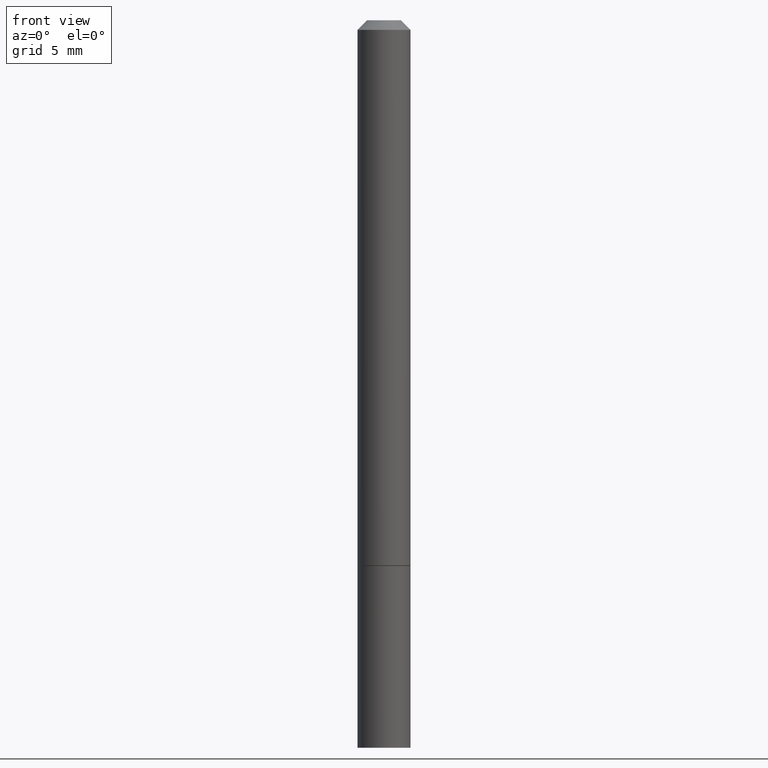
[diagram: clean part render]
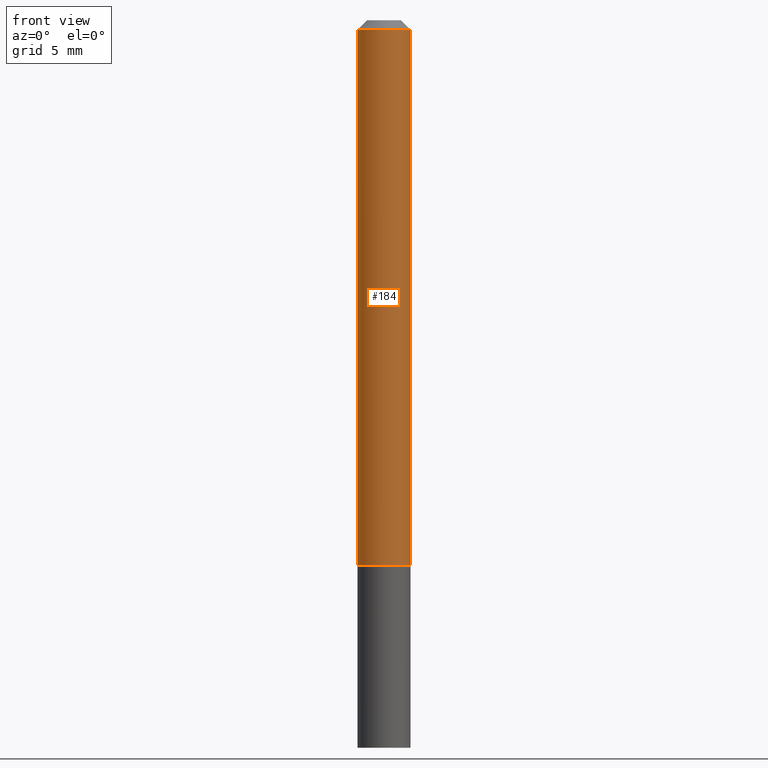
[diagram: same view with one face highlighted and labeled with its STEP entity id]
A machine part, front view. The second image highlights one B-rep face of the part: STEP entity #184.
In plain terms, the highlighted cylindrical surface (edge-blend (fillet) strip) has radius 1.3894 mm, axis along (-0, 0, 1).
Its self-contained STEP definition (entity closure, byte-faithful):
#15 = DIRECTION ( 'NONE',  ( -2.445468806185136597E-29, 3.491481338843145583E-15, 1.000000000000000000 ) ) ;
#27 = AXIS2_PLACEMENT_3D ( 'NONE', #318, #208, #353 ) ;
#41 = ORIENTED_EDGE ( 'NONE', *, *, #149, .F. ) ;
#62 = CARTESIAN_POINT ( 'NONE',  ( 4.890937612370276662E-31, -6.982962677686296539E-17, -0.02000000000000001776 ) ) ;
#78 = CIRCLE ( 'NONE', #27, 0.05469999999999999862 ) ;
#83 = DIRECTION ( 'NONE',  ( 1.000000000000000000, -6.982962677686266711E-15, 0.000000000000000000 ) ) ;
#85 = LINE ( 'NONE', #148, #123 ) ;
#89 = CARTESIAN_POINT ( 'NONE',  ( 0.05469999999999999862, -4.306393083329135397E-15, -1.124000000000000332 ) ) ;
#111 = DIRECTION ( 'NONE',  ( -2.445468806185136597E-29, 3.491481338843145583E-15, 1.000000000000000000 ) ) ;
#114 = EDGE_LOOP ( 'NONE', ( #315, #305, #127, #41 ) ) ;
#115 = DIRECTION ( 'NONE',  ( 1.000000000000000000, -6.982962677686266711E-15, 4.876176775795935793E-29 ) ) ;
#122 = DIRECTION ( 'NONE',  ( -2.445468806185136877E-29, 3.491481338843145188E-15, 1.000000000000000000 ) ) ;
#123 = VECTOR ( 'NONE', #387, 39.37007874015748143 ) ;
#127 = ORIENTED_EDGE ( 'NONE', *, *, #370, .T. ) ;
#134 = VERTEX_POINT ( 'NONE', #89 ) ;
#145 = CIRCLE ( 'NONE', #335, 0.05469999999999985291 ) ;
#148 = CARTESIAN_POINT ( 'NONE',  ( -0.05469999999999992923, 3.886668764607742989E-16, -2.690657494369430205E-30 ) ) ;
#149 = EDGE_CURVE ( 'NONE', #357, #182, #145, .T. ) ;
#151 = CARTESIAN_POINT ( 'NONE',  ( -0.05469999999999985291, 3.121384316925747975E-16, -0.02000000000000001776 ) ) ;
#154 = EDGE_CURVE ( 'NONE', #218, #134, #78, .T. ) ;
#182 = VERTEX_POINT ( 'NONE', #379 ) ;
#183 = CARTESIAN_POINT ( 'NONE',  ( 0.000000000000000000, 0.000000000000000000, 0.000000000000000000 ) ) ;
#184 = ADVANCED_FACE ( 'NONE', ( #264 ), #383, .T. ) ;
#185 = AXIS2_PLACEMENT_3D ( 'NONE', #183, #111, #115 ) ;
#187 = LINE ( 'NONE', #209, #244 ) ;
#208 = DIRECTION ( 'NONE',  ( -2.445468806185136597E-29, 3.491481338843145583E-15, 1.000000000000000000 ) ) ;
#209 = CARTESIAN_POINT ( 'NONE',  ( 0.05469999999999992923, -3.819680584694382929E-16, 2.667268696360373451E-30 ) ) ;
#218 = VERTEX_POINT ( 'NONE', #297 ) ;
#228 = EDGE_CURVE ( 'NONE', #218, #357, #85, .T. ) ;
#244 = VECTOR ( 'NONE', #122, 39.37007874015748143 ) ;
#264 = FACE_OUTER_BOUND ( 'NONE', #114, .T. ) ;
#297 = CARTESIAN_POINT ( 'NONE',  ( -0.05470000000000000556, -1.608460449357502599E-15, -1.124000000000000332 ) ) ;
#305 = ORIENTED_EDGE ( 'NONE', *, *, #154, .T. ) ;
#315 = ORIENTED_EDGE ( 'NONE', *, *, #228, .F. ) ;
#318 = CARTESIAN_POINT ( 'NONE',  ( 2.748706938152094189E-29, -3.924425024859696217E-15, -1.124000000000000332 ) ) ;
#335 = AXIS2_PLACEMENT_3D ( 'NONE', #62, #15, #83 ) ;
#353 = DIRECTION ( 'NONE',  ( 1.000000000000000000, -6.982962677686269866E-15, 0.000000000000000000 ) ) ;
#357 = VERTEX_POINT ( 'NONE', #151 ) ;
#370 = EDGE_CURVE ( 'NONE', #134, #182, #187, .T. ) ;
#379 = CARTESIAN_POINT ( 'NONE',  ( 0.05469999999999985291, -4.450988672549647962E-16, -0.02000000000000001776 ) ) ;
#383 = CYLINDRICAL_SURFACE ( 'NONE', #185, 0.05469999999999992923 ) ;
#387 = DIRECTION ( 'NONE',  ( -2.445468806185136877E-29, 3.491481338843145188E-15, 1.000000000000000000 ) ) ;